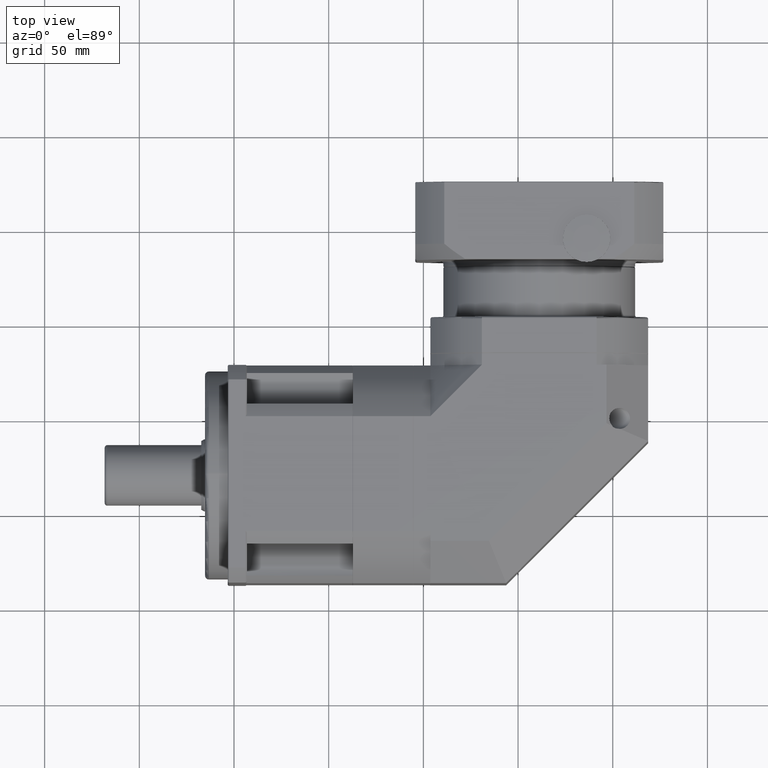
[diagram: clean part render]
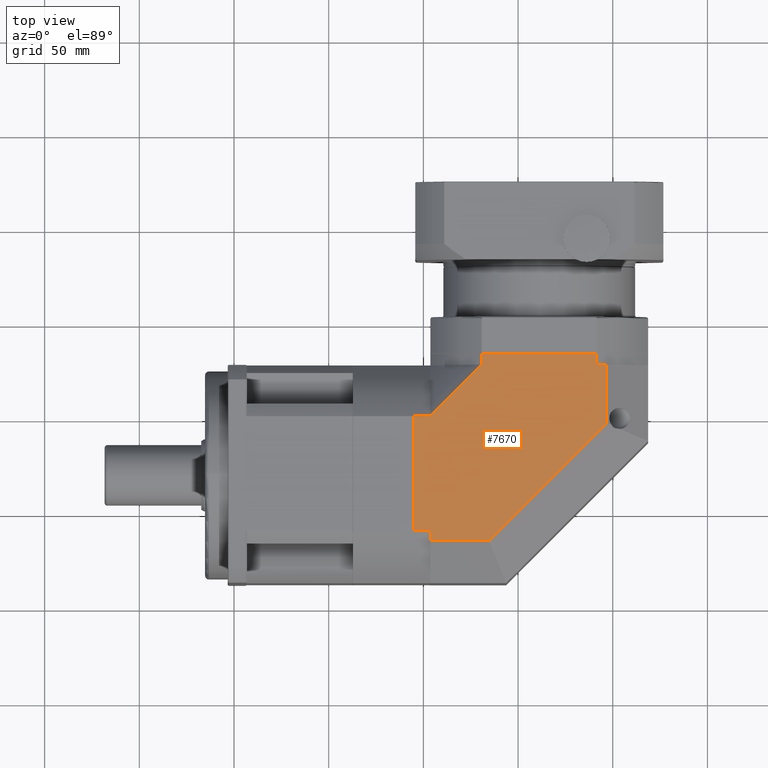
[diagram: same view with one face highlighted and labeled with its STEP entity id]
A machine part, top view. The second image highlights one B-rep face of the part: STEP entity #7670.
In plain terms, the highlighted planar face has unit normal (-0, -0, 1).
Its self-contained STEP definition (entity closure, byte-faithful):
#240=LINE('',#12128,#630);
#248=LINE('',#12161,#638);
#254=LINE('',#12205,#644);
#270=LINE('',#12282,#660);
#275=LINE('',#12295,#665);
#278=LINE('',#12299,#668);
#281=LINE('',#12304,#671);
#289=LINE('',#12321,#679);
#290=LINE('',#12325,#680);
#295=LINE('',#12338,#685);
#297=LINE('',#12341,#687);
#300=LINE('',#12347,#690);
#630=VECTOR('',#9584,60.6217782649108);
#638=VECTOR('',#9610,60.6217782649107);
#644=VECTOR('',#9628,38.4512093377473);
#660=VECTOR('',#9684,87.8406204335866);
#665=VECTOR('',#9693,5.18911086754461);
#668=VECTOR('',#9698,6.);
#671=VECTOR('',#9705,6.);
#679=VECTOR('',#9729,30.8873016277894);
#680=VECTOR('',#9732,5.18911086754462);
#685=VECTOR('',#9745,9.);
#687=VECTOR('',#9749,9.);
#690=VECTOR('',#9758,30.8873016277653);
#1074=PLANE('',#8390);
#2127=FACE_OUTER_BOUND('',#2759,.T.);
#2759=EDGE_LOOP('',(#5886,#5887,#5888,#5889,#5890,#5891,#5892,#5893,#5894,
#5895,#5896,#5897));
#3881=VERTEX_POINT('',#12125);
#3882=VERTEX_POINT('',#12127);
#3897=VERTEX_POINT('',#12158);
#3898=VERTEX_POINT('',#12160);
#3908=VERTEX_POINT('',#12201);
#3910=VERTEX_POINT('',#12204);
#3930=VERTEX_POINT('',#12279);
#3931=VERTEX_POINT('',#12281);
#3936=VERTEX_POINT('',#12292);
#3937=VERTEX_POINT('',#12294);
#3939=VERTEX_POINT('',#12323);
#3940=VERTEX_POINT('',#12324);
#4611=EDGE_CURVE('',#3881,#3882,#240,.T.);
#4627=EDGE_CURVE('',#3897,#3898,#248,.T.);
#4639=EDGE_CURVE('',#3910,#3908,#254,.T.);
#4664=EDGE_CURVE('',#3930,#3931,#270,.T.);
#4670=EDGE_CURVE('',#3937,#3936,#275,.T.);
#4673=EDGE_CURVE('',#3881,#3910,#278,.T.);
#4676=EDGE_CURVE('',#3936,#3882,#281,.T.);
#4686=EDGE_CURVE('',#3937,#3930,#289,.T.);
#4687=EDGE_CURVE('',#3939,#3940,#290,.T.);
#4694=EDGE_CURVE('',#3897,#3939,#295,.T.);
#4696=EDGE_CURVE('',#3908,#3898,#297,.T.);
#4699=EDGE_CURVE('',#3931,#3940,#300,.T.);
#5886=ORIENTED_EDGE('',*,*,#4639,.T.);
#5887=ORIENTED_EDGE('',*,*,#4696,.T.);
#5888=ORIENTED_EDGE('',*,*,#4627,.F.);
#5889=ORIENTED_EDGE('',*,*,#4694,.T.);
#5890=ORIENTED_EDGE('',*,*,#4687,.T.);
#5891=ORIENTED_EDGE('',*,*,#4699,.F.);
#5892=ORIENTED_EDGE('',*,*,#4664,.F.);
#5893=ORIENTED_EDGE('',*,*,#4686,.F.);
#5894=ORIENTED_EDGE('',*,*,#4670,.T.);
#5895=ORIENTED_EDGE('',*,*,#4676,.T.);
#5896=ORIENTED_EDGE('',*,*,#4611,.F.);
#5897=ORIENTED_EDGE('',*,*,#4673,.T.);
#7670=ADVANCED_FACE('',(#2127),#1074,.T.);
#8390=AXIS2_PLACEMENT_3D('',#12354,#9766,#9767);
#9584=DIRECTION('',(1.,-1.88175457273841E-17,2.26448314065169E-15));
#9610=DIRECTION('',(1.88175457273805E-17,1.,1.68705629176737E-15));
#9628=DIRECTION('',(-0.707106781186547,-0.707106781186548,-2.97053683991353E-15));
#9684=DIRECTION('',(-0.707106781186685,-0.70710678118641,-2.79416032878964E-15));
#9693=DIRECTION('',(-1.,1.88175457273841E-17,-2.26448314065169E-15));
#9698=DIRECTION('',(-1.88175457273807E-17,-1.,-1.60982338570649E-15));
#9705=DIRECTION('',(1.88175457273807E-17,1.,1.60982338570649E-15));
#9729=DIRECTION('',(-1.88175457273805E-17,-1.,-1.68705629176737E-15));
#9732=DIRECTION('',(-1.88175457273805E-17,-1.,-1.68705629176737E-15));
#9745=DIRECTION('',(1.,-1.88175457273841E-17,2.26448314065169E-15));
#9749=DIRECTION('',(-1.,1.88175457273841E-17,-2.26448314065169E-15));
#9758=DIRECTION('',(-1.,1.88175457273841E-17,-2.26448314065169E-15));
#9766=DIRECTION('center_axis',(-2.26448314065169E-15,-1.68705629176737E-15,
1.));
#9767=DIRECTION('ref_axis',(0.,1.,1.4210854715202E-15));
#12125=CARTESIAN_POINT('',(130.887657299168,33.956835803239,105.115721116421));
#12127=CARTESIAN_POINT('',(191.509435564078,33.956835803239,105.115721116421));
#12128=CARTESIAN_POINT('',(103.698546431623,33.956835803239,105.115721116421));
#12158=CARTESIAN_POINT('',(94.6985464316231,-59.8540533292163,105.115721116421));
#12160=CARTESIAN_POINT('',(94.6985464316231,0.767724935694418,105.115721116421));
#12161=CARTESIAN_POINT('',(94.6985464316231,-87.043164196761,105.115721116421));
#12201=CARTESIAN_POINT('',(103.698546431623,0.767724935694414,105.115721116421));
#12204=CARTESIAN_POINT('',(130.887657299168,27.956835803239,105.115721116421));
#12205=CARTESIAN_POINT('',(103.698546431623,0.767724935694414,105.115721116421));
#12279=CARTESIAN_POINT('',(196.698546431623,-2.93046582455036,105.115721116421));
#12281=CARTESIAN_POINT('',(134.585848059388,-65.043164196761,105.115721116421));
#12282=CARTESIAN_POINT('',(184.392197245522,-15.2368150106466,105.115721116421));
#12292=CARTESIAN_POINT('',(191.509435564078,27.956835803239,105.115721116421));
#12294=CARTESIAN_POINT('',(196.698546431623,27.956835803239,105.115721116421));
#12295=CARTESIAN_POINT('',(189.948546431623,27.956835803239,105.115721116421));
#12299=CARTESIAN_POINT('',(130.887657299168,33.956835803239,105.115721116421));
#12304=CARTESIAN_POINT('',(191.509435564078,33.956835803239,105.115721116421));
#12321=CARTESIAN_POINT('',(196.698546431623,-58.293164196761,105.115721116421));
#12323=CARTESIAN_POINT('',(103.698546431623,-59.8540533292163,105.115721116421));
#12324=CARTESIAN_POINT('',(103.698546431623,-65.043164196761,105.115721116421));
#12325=CARTESIAN_POINT('',(103.698546431623,-58.293164196761,105.115721116421));
#12338=CARTESIAN_POINT('',(94.6985464316231,-59.8540533292163,105.115721116421));
#12341=CARTESIAN_POINT('',(94.6985464316231,0.767724935694418,105.115721116421));
#12347=CARTESIAN_POINT('',(218.698546431623,-65.043164196761,105.115721116421));
#12354=CARTESIAN_POINT('Origin',(218.698546431623,-87.043164196761,105.115721116421));